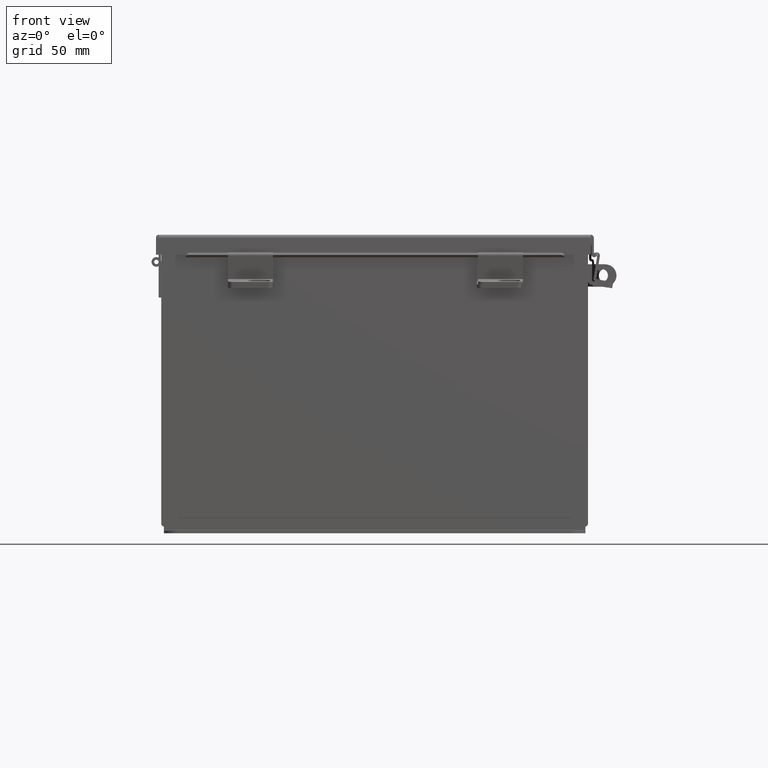
[diagram: clean part render]
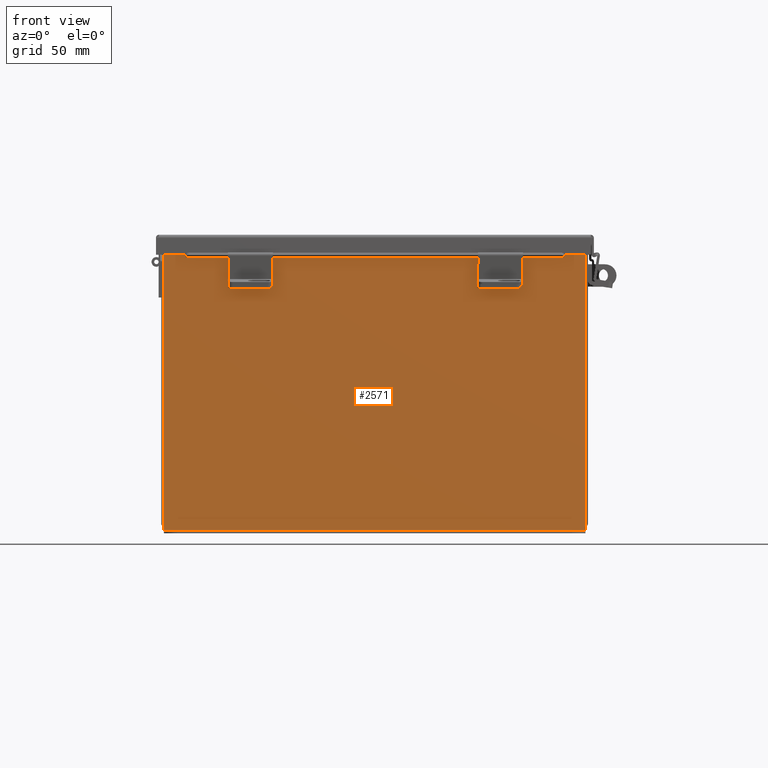
[diagram: same view with one face highlighted and labeled with its STEP entity id]
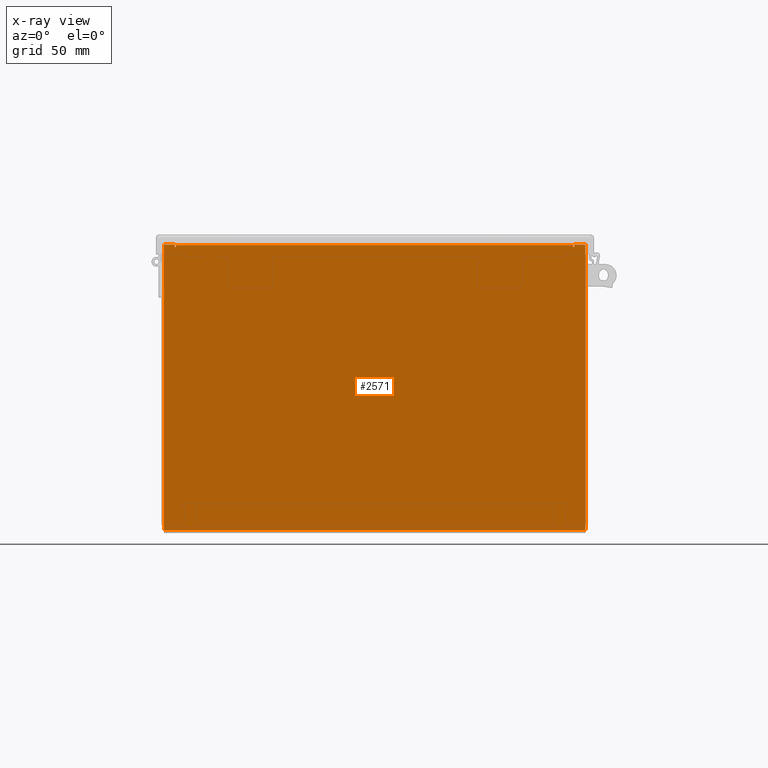
[diagram: x-ray of the same camera — body ghosted, the highlighted face saturated]
A machine part, front view. The second image highlights one B-rep face of the part: STEP entity #2571.
The next image is the same camera in x-ray: the body ghosted, the highlighted face saturated — about 0% of this face is hidden behind the body in this view.
In plain terms, the highlighted planar face has unit normal (-0, 1, -0).
Its self-contained STEP definition (entity closure, byte-faithful):
#79 = EDGE_CURVE ( 'NONE', #2752, #13072, #11855, .T. ) ;
#685 = LINE ( 'NONE', #15284, #3958 ) ;
#689 = CARTESIAN_POINT ( 'NONE',  ( 5.582299999999999200, 8.741913579725642300E-015, 3.874949999999999200 ) ) ;
#698 = ORIENTED_EDGE ( 'NONE', *, *, #13818, .F. ) ;
#733 = CARTESIAN_POINT ( 'NONE',  ( -5.619650000000000000, 0.0000000000000000000, 3.874949999999997900 ) ) ;
#894 = VECTOR ( 'NONE', #5338, 39.37007874015748100 ) ;
#1442 = LINE ( 'NONE', #15701, #15196 ) ;
#1499 = DIRECTION ( 'NONE',  ( 0.0000000000000000000, 0.0000000000000000000, -1.000000000000000000 ) ) ;
#1529 = EDGE_CURVE ( 'NONE', #11896, #10817, #17067, .T. ) ;
#1630 = VERTEX_POINT ( 'NONE', #7745 ) ;
#2028 = VECTOR ( 'NONE', #1499, 39.37007874015748100 ) ;
#2046 = CARTESIAN_POINT ( 'NONE',  ( 5.925299999999999100, 8.741913579725642300E-015, 3.925299999999999100 ) ) ;
#2061 = CIRCLE ( 'NONE', #7393, 0.01867500000000003900 ) ;
#2190 = EDGE_CURVE ( 'NONE', #2752, #6386, #685, .T. ) ;
#2571 = ADVANCED_FACE ( 'NONE', ( #5242 ), #11474, .F. ) ;
#2752 = VERTEX_POINT ( 'NONE', #5511 ) ;
#3083 = VERTEX_POINT ( 'NONE', #15685 ) ;
#3395 = LINE ( 'NONE', #10692, #16709 ) ;
#3565 = ORIENTED_EDGE ( 'NONE', *, *, #5322, .F. ) ;
#3895 = DIRECTION ( 'NONE',  ( 0.0000000000000000000, 0.0000000000000000000, -1.000000000000000000 ) ) ;
#3958 = VECTOR ( 'NONE', #15819, 39.37007874015748100 ) ;
#4247 = CARTESIAN_POINT ( 'NONE',  ( -5.582300000000000000, 0.0000000000000000000, 3.874949999999997900 ) ) ;
#4562 = VECTOR ( 'NONE', #11863, 39.37007874015748100 ) ;
#4798 = EDGE_CURVE ( 'NONE', #16763, #3083, #14807, .T. ) ;
#5238 = CARTESIAN_POINT ( 'NONE',  ( 5.619649999999998300, 8.741913579725642300E-015, 3.874949999999999200 ) ) ;
#5242 = FACE_OUTER_BOUND ( 'NONE', #16563, .T. ) ;
#5322 = EDGE_CURVE ( 'NONE', #9561, #6187, #10268, .T. ) ;
#5338 = DIRECTION ( 'NONE',  ( 1.000000000000000000, 4.910036603141682400E-031, 0.0000000000000000000 ) ) ;
#5424 = CARTESIAN_POINT ( 'NONE',  ( -5.619650000000000000, 0.0000000000000000000, 3.925299999999999100 ) ) ;
#5469 = CARTESIAN_POINT ( 'NONE',  ( 5.925299999999999100, 8.741913579725642300E-015, -4.099300000000003900 ) ) ;
#5511 = CARTESIAN_POINT ( 'NONE',  ( 5.619650000000000000, 8.741913579725642300E-015, 3.925300000000000500 ) ) ;
#5532 = ORIENTED_EDGE ( 'NONE', *, *, #11842, .F. ) ;
#5620 = CARTESIAN_POINT ( 'NONE',  ( -5.582300000000000000, 0.0000000000000000000, 0.0000000000000000000 ) ) ;
#6187 = VERTEX_POINT ( 'NONE', #733 ) ;
#6227 = ORIENTED_EDGE ( 'NONE', *, *, #2190, .F. ) ;
#6273 = CARTESIAN_POINT ( 'NONE',  ( -5.582300000000000900, 2.185478394931410600E-015, 3.912299999999999200 ) ) ;
#6386 = VERTEX_POINT ( 'NONE', #5238 ) ;
#6390 = CARTESIAN_POINT ( 'NONE',  ( -5.925300000000001800, 0.0000000000000000000, 3.925300000000000500 ) ) ;
#6654 = DIRECTION ( 'NONE',  ( 4.910036603141682400E-031, 1.000000000000000000, -0.0000000000000000000 ) ) ;
#6840 = ORIENTED_EDGE ( 'NONE', *, *, #13452, .F. ) ;
#7037 = ORIENTED_EDGE ( 'NONE', *, *, #79, .T. ) ;
#7393 = AXIS2_PLACEMENT_3D ( 'NONE', #7804, #17416, #9180 ) ;
#7555 = DIRECTION ( 'NONE',  ( 1.000000000000000000, 4.910036603141682400E-031, -0.0000000000000000000 ) ) ;
#7745 = CARTESIAN_POINT ( 'NONE',  ( -5.925300000000001800, 0.0000000000000000000, 3.925300000000000500 ) ) ;
#7752 = CARTESIAN_POINT ( 'NONE',  ( 5.582299999999999200, 0.0000000000000000000, 0.0000000000000000000 ) ) ;
#7804 = CARTESIAN_POINT ( 'NONE',  ( 5.600974999999998300, 8.741913579725642300E-015, 3.874949999999999200 ) ) ;
#7827 = LINE ( 'NONE', #7752, #9111 ) ;
#8724 = VERTEX_POINT ( 'NONE', #689 ) ;
#8853 = DIRECTION ( 'NONE',  ( 0.0000000000000000000, 0.0000000000000000000, 1.000000000000000000 ) ) ;
#8947 = ORIENTED_EDGE ( 'NONE', *, *, #9953, .T. ) ;
#9042 = AXIS2_PLACEMENT_3D ( 'NONE', #11223, #10883, #10763 ) ;
#9111 = VECTOR ( 'NONE', #17345, 39.37007874015748100 ) ;
#9180 = DIRECTION ( 'NONE',  ( 0.0000000000000000000, 0.0000000000000000000, -1.000000000000000000 ) ) ;
#9340 = LINE ( 'NONE', #5620, #2028 ) ;
#9561 = VERTEX_POINT ( 'NONE', #4247 ) ;
#9569 = DIRECTION ( 'NONE',  ( 1.000000000000000000, 4.910036603141682400E-031, 0.0000000000000000000 ) ) ;
#9852 = VECTOR ( 'NONE', #9569, 39.37007874015748100 ) ;
#9953 = EDGE_CURVE ( 'NONE', #11896, #1630, #15038, .T. ) ;
#10159 = CARTESIAN_POINT ( 'NONE',  ( -5.925300000000001800, 0.0000000000000000000, -4.099299999999999500 ) ) ;
#10268 = CIRCLE ( 'NONE', #11085, 0.01867500000000003900 ) ;
#10417 = ORIENTED_EDGE ( 'NONE', *, *, #11288, .T. ) ;
#10485 = ORIENTED_EDGE ( 'NONE', *, *, #11166, .F. ) ;
#10606 = CARTESIAN_POINT ( 'NONE',  ( -5.925300000000000000, 0.0000000000000000000, -4.099299999999999500 ) ) ;
#10631 = ORIENTED_EDGE ( 'NONE', *, *, #10829, .T. ) ;
#10692 = CARTESIAN_POINT ( 'NONE',  ( 5.925299999999999100, 8.741913579725642300E-015, 3.925299999999999100 ) ) ;
#10763 = DIRECTION ( 'NONE',  ( 0.0000000000000000000, 0.0000000000000000000, -1.000000000000000000 ) ) ;
#10817 = VERTEX_POINT ( 'NONE', #5469 ) ;
#10829 = EDGE_CURVE ( 'NONE', #1630, #14667, #12624, .T. ) ;
#10883 = DIRECTION ( 'NONE',  ( -4.910036603141682400E-031, -1.000000000000000000, -0.0000000000000000000 ) ) ;
#11085 = AXIS2_PLACEMENT_3D ( 'NONE', #14847, #6654, #16219 ) ;
#11166 = EDGE_CURVE ( 'NONE', #6187, #14667, #1442, .T. ) ;
#11223 = CARTESIAN_POINT ( 'NONE',  ( 0.0000000000000000000, 0.0000000000000000000, 0.0000000000000000000 ) ) ;
#11288 = EDGE_CURVE ( 'NONE', #13072, #10817, #3395, .T. ) ;
#11474 = PLANE ( 'NONE',  #9042 ) ;
#11842 = EDGE_CURVE ( 'NONE', #6386, #8724, #2061, .T. ) ;
#11855 = LINE ( 'NONE', #13627, #894 ) ;
#11863 = DIRECTION ( 'NONE',  ( 0.0000000000000000000, 0.0000000000000000000, 1.000000000000000000 ) ) ;
#11896 = VERTEX_POINT ( 'NONE', #10606 ) ;
#12303 = ORIENTED_EDGE ( 'NONE', *, *, #4798, .T. ) ;
#12308 = CARTESIAN_POINT ( 'NONE',  ( -5.925300000000001800, 0.0000000000000000000, 3.925300000000000500 ) ) ;
#12624 = LINE ( 'NONE', #12308, #9852 ) ;
#13072 = VERTEX_POINT ( 'NONE', #2046 ) ;
#13227 = CARTESIAN_POINT ( 'NONE',  ( -5.582300000000000000, 2.185478394931410600E-015, 3.912299999999999200 ) ) ;
#13383 = VECTOR ( 'NONE', #14012, 39.37007874015748100 ) ;
#13452 = EDGE_CURVE ( 'NONE', #16763, #9561, #9340, .T. ) ;
#13627 = CARTESIAN_POINT ( 'NONE',  ( -5.925300000000001800, 0.0000000000000000000, 3.925300000000000500 ) ) ;
#13818 = EDGE_CURVE ( 'NONE', #8724, #3083, #7827, .T. ) ;
#14012 = DIRECTION ( 'NONE',  ( 1.000000000000000000, 4.910036603141682400E-031, -0.0000000000000000000 ) ) ;
#14381 = VECTOR ( 'NONE', #7555, 39.37007874015748100 ) ;
#14667 = VERTEX_POINT ( 'NONE', #5424 ) ;
#14807 = LINE ( 'NONE', #6273, #14381 ) ;
#14847 = CARTESIAN_POINT ( 'NONE',  ( -5.600975000000000000, 0.0000000000000000000, 3.874949999999997900 ) ) ;
#15038 = LINE ( 'NONE', #6390, #4562 ) ;
#15196 = VECTOR ( 'NONE', #8853, 39.37007874015748100 ) ;
#15284 = CARTESIAN_POINT ( 'NONE',  ( 5.619649999999914800, 0.0000000000000000000, -1.262113773072889600E-013 ) ) ;
#15478 = ORIENTED_EDGE ( 'NONE', *, *, #1529, .F. ) ;
#15685 = CARTESIAN_POINT ( 'NONE',  ( 5.582299999999999200, 8.741913579725642300E-015, 3.912299999999997900 ) ) ;
#15701 = CARTESIAN_POINT ( 'NONE',  ( -5.619650000000000000, 0.0000000000000000000, 0.0000000000000000000 ) ) ;
#15819 = DIRECTION ( 'NONE',  ( -2.170286390199955400E-014, -7.888609052210118100E-031, -1.000000000000000000 ) ) ;
#16219 = DIRECTION ( 'NONE',  ( 0.0000000000000000000, 0.0000000000000000000, -1.000000000000000000 ) ) ;
#16563 = EDGE_LOOP ( 'NONE', ( #10485, #3565, #6840, #12303, #698, #5532, #6227, #7037, #10417, #15478, #8947, #10631 ) ) ;
#16709 = VECTOR ( 'NONE', #3895, 39.37007874015748100 ) ;
#16763 = VERTEX_POINT ( 'NONE', #13227 ) ;
#17067 = LINE ( 'NONE', #10159, #13383 ) ;
#17345 = DIRECTION ( 'NONE',  ( 0.0000000000000000000, 0.0000000000000000000, 1.000000000000000000 ) ) ;
#17416 = DIRECTION ( 'NONE',  ( 4.910036603141682400E-031, 1.000000000000000000, -0.0000000000000000000 ) ) ;